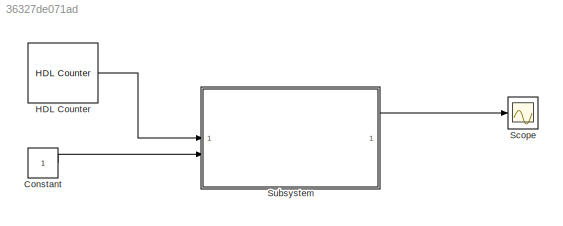
MODEL slx_36327de071ad
KIND model
CONFIG AbsTol = auto
CONFIG EnableMultiTasking = off
CONFIG FixedStep = auto
CONFIG MaxStep = auto
CONFIG MinStep = auto
CONFIG RelTol = 1e-3
CONFIG SampleTimeConstraint = Unconstrained
CONFIG SolverName = VariableStepAuto
CONFIG StartTime = 0.0
CONFIG StopTime = 10.0
BLOCK [Constant] Constant
  OutDataTypeStr = boolean
BLOCK [Reference] HDL Counter  REF=hdlsllib/Sources/HDL Counter
  SourceBlock = hdlsllib/Sources/HDL Counter
  SourceType = HDL Counter
BLOCK [Scope] Scope
  Floating = off
  NumInputPorts = 1
  ScopeSpecificationString = Simulink.scopes.TimeScopeBlockCfg('CurrentConfiguration', extmgr.ConfigurationSet(extmgr.Configuration('Core','General UI',true),extmgr.Configuration('Core','Source UI',true),extmgr.Configuration('Sources','WiredSimulink',true),extmgr.Configuration('Visuals','Time Domain',true,'SerializedDisplays',{struct('MinYLimReal','-1.25','MaxYLimReal','1.25','YLabelReal','','MinYLimMag','0.00000','MaxYLimMag...<+1386ch>
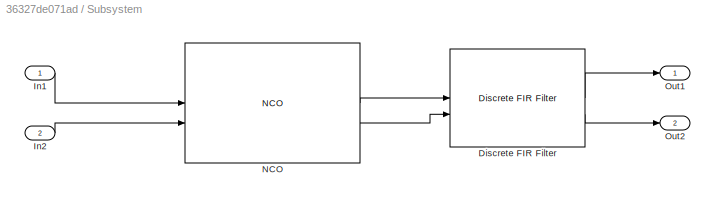
BLOCK [SubSystem] Subsystem
BLOCK [Reference] Subsystem/Discrete FIR Filter  REF=dsphdlfiltering2/Discrete FIR Filter
  SourceBlock = dsphdlfiltering2/Discrete FIR Filter
  SourceType = Discrete FIR Filter
BLOCK [Inport] Subsystem/In1
BLOCK [Inport] Subsystem/In2
  Port = 2
BLOCK [Reference] Subsystem/NCO  REF=dsphdlsigops2/NCO
  LibrarySourceBlock = dsphdlsrcs2/NCO
  SourceBlock = dsphdlsigops2/NCO
  SourceType = NCO
BLOCK [Outport] Subsystem/Out1
BLOCK [Outport] Subsystem/Out2
  Port = 2
LINE Constant:1 -> Subsystem:2
LINE HDL Counter:1 -> Subsystem:1
LINE Subsystem/Discrete FIR Filter:1 -> Subsystem/Out1:1
LINE Subsystem/Discrete FIR Filter:2 -> Subsystem/Out2:1
LINE Subsystem/In1:1 -> Subsystem/NCO:1
LINE Subsystem/In2:1 -> Subsystem/NCO:2
LINE Subsystem/NCO:1 -> Subsystem/Discrete FIR Filter:1
LINE Subsystem/NCO:2 -> Subsystem/Discrete FIR Filter:2
LINE Subsystem:1 -> Scope:1
